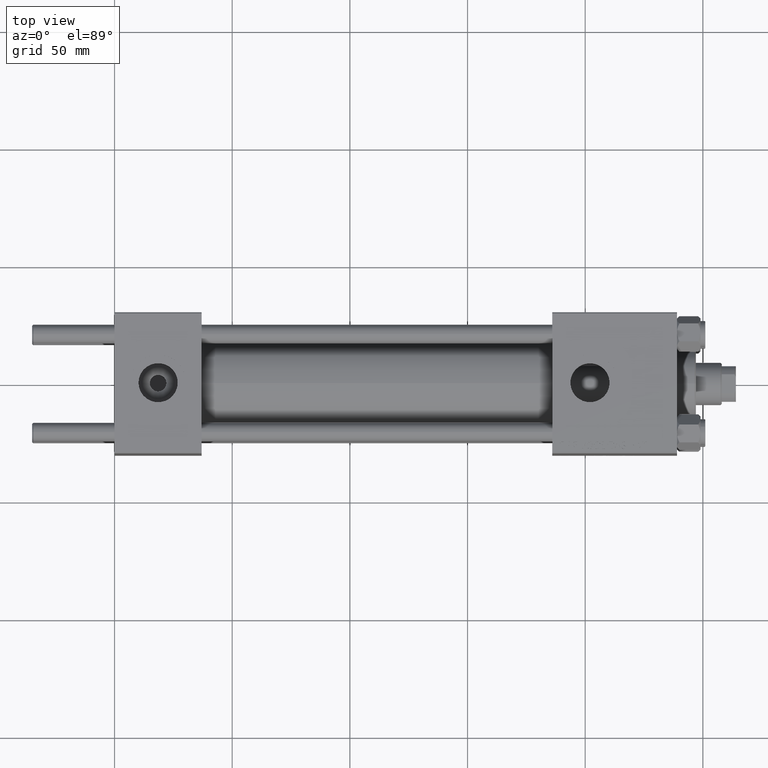
[diagram: clean part render]
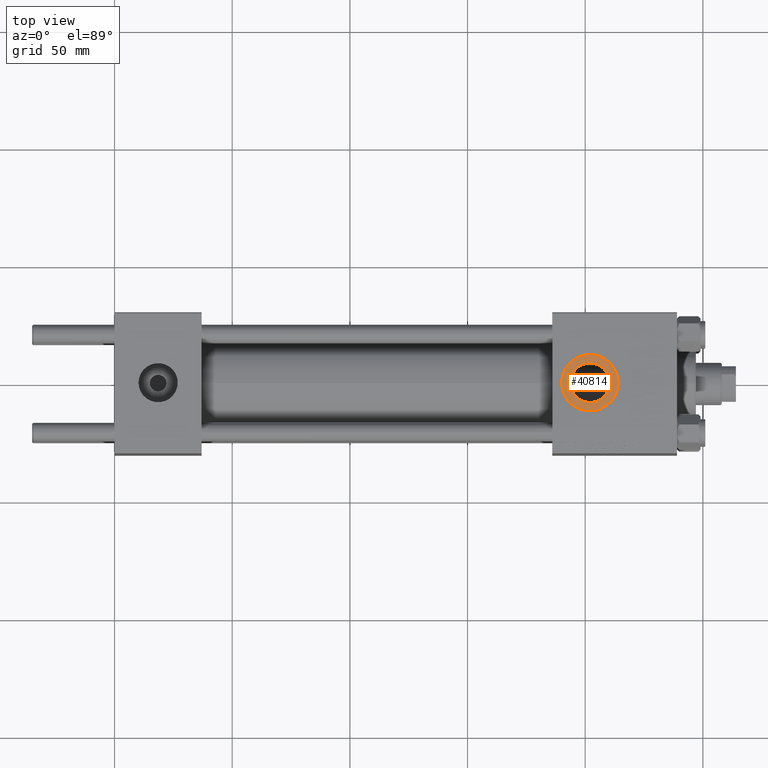
[diagram: same view with one face highlighted and labeled with its STEP entity id]
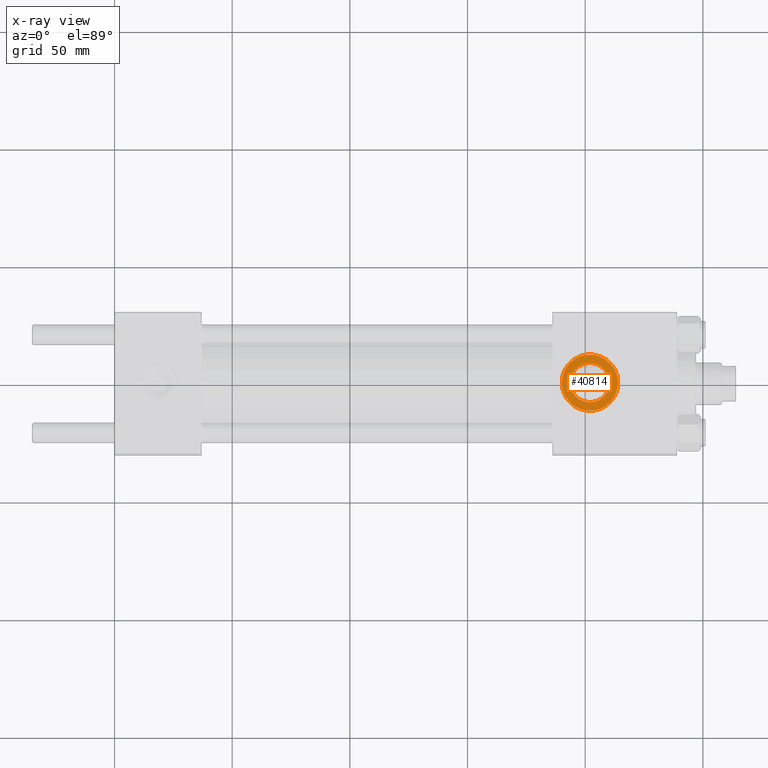
[diagram: x-ray of the same camera — body ghosted, the highlighted face saturated]
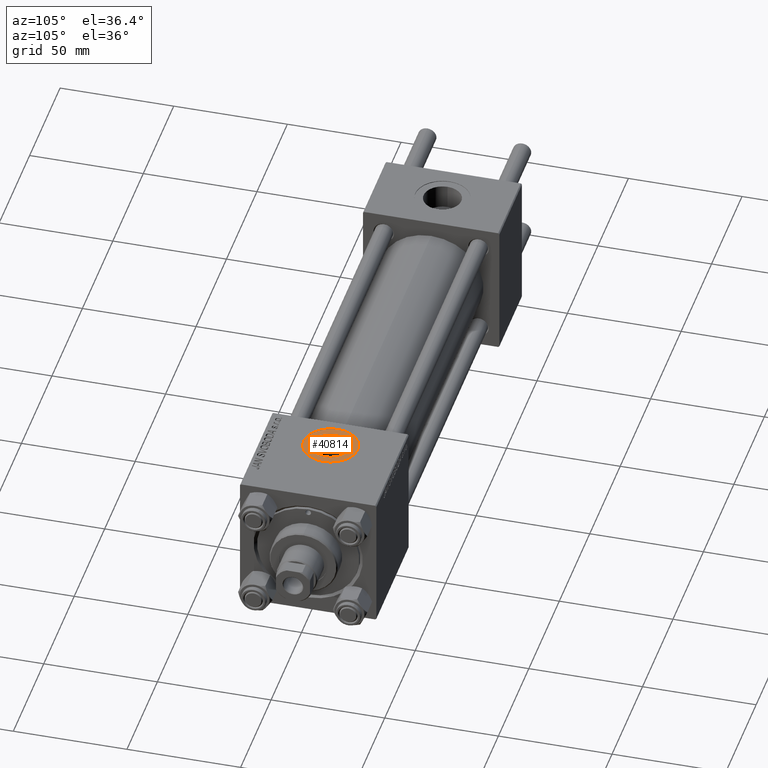
[diagram: same view with one face highlighted and labeled with its STEP entity id]
A machine part, top view. The second image highlights one B-rep face of the part: STEP entity #40814.
The next image is the same camera in x-ray: the body ghosted, the highlighted face saturated — about 0% of this face is hidden behind the body in this view.
A second angle (auxiliary view) of the same face is appended — the face is thin or edge-on in the first view.
In plain terms, the highlighted planar face has unit normal (0, 0, 1).
Its self-contained STEP definition (entity closure, byte-faithful):
#79 = EDGE_CURVE ( 'NONE', #42237, #34121, #28500, .T. ) ;
#1603 = DIRECTION ( 'NONE',  ( 0.000000000000000000, 0.000000000000000000, 1.000000000000000000 ) ) ;
#4511 = DIRECTION ( 'NONE',  ( 1.000000000000000000, 0.000000000000000000, 0.000000000000000000 ) ) ;
#5059 = AXIS2_PLACEMENT_3D ( 'NONE', #39445, #24225, #4511 ) ;
#6160 = AXIS2_PLACEMENT_3D ( 'NONE', #33028, #24645, #8729 ) ;
#7421 = CARTESIAN_POINT ( 'NONE',  ( 202.0000000000000000, -3.469446951953613794E-15, 29.79999999999999716 ) ) ;
#8729 = DIRECTION ( 'NONE',  ( 1.000000000000000000, 0.000000000000000000, 0.000000000000000000 ) ) ;
#8903 = ORIENTED_EDGE ( 'NONE', *, *, #33921, .T. ) ;
#9256 = VERTEX_POINT ( 'NONE', #19617 ) ;
#9717 = VERTEX_POINT ( 'NONE', #25280 ) ;
#10300 = PLANE ( 'NONE',  #28069 ) ;
#13158 = CIRCLE ( 'NONE', #5059, 8.330000000000003624 ) ;
#15512 = CARTESIAN_POINT ( 'NONE',  ( 202.0000000000000000, -3.469446951953613794E-15, 29.79999999999999716 ) ) ;
#16997 = EDGE_CURVE ( 'NONE', #34121, #42237, #13158, .T. ) ;
#19617 = CARTESIAN_POINT ( 'NONE',  ( 190.0000000000000000, -1.999870792976789650E-15, 29.79999999999999716 ) ) ;
#21668 = FACE_OUTER_BOUND ( 'NONE', #32291, .T. ) ;
#22614 = EDGE_LOOP ( 'NONE', ( #40272, #34931 ) ) ;
#24225 = DIRECTION ( 'NONE',  ( -0.000000000000000000, -0.000000000000000000, -1.000000000000000000 ) ) ;
#24645 = DIRECTION ( 'NONE',  ( 0.000000000000000000, 0.000000000000000000, 1.000000000000000000 ) ) ;
#25280 = CARTESIAN_POINT ( 'NONE',  ( 214.0000000000000284, -3.469446951953613794E-15, 29.79999999999999716 ) ) ;
#27133 = DIRECTION ( 'NONE',  ( 1.000000000000000000, 0.000000000000000000, 0.000000000000000000 ) ) ;
#27539 = EDGE_CURVE ( 'NONE', #9256, #9717, #32006, .T. ) ;
#28069 = AXIS2_PLACEMENT_3D ( 'NONE', #15512, #42353, #30225 ) ;
#28500 = CIRCLE ( 'NONE', #47902, 8.330000000000003624 ) ;
#28947 = CIRCLE ( 'NONE', #32183, 12.00000000000001066 ) ;
#30225 = DIRECTION ( 'NONE',  ( 1.000000000000000000, 0.000000000000000000, -0.000000000000000000 ) ) ;
#32006 = CIRCLE ( 'NONE', #6160, 12.00000000000001066 ) ;
#32183 = AXIS2_PLACEMENT_3D ( 'NONE', #48918, #1603, #37294 ) ;
#32291 = EDGE_LOOP ( 'NONE', ( #8903, #41976 ) ) ;
#33028 = CARTESIAN_POINT ( 'NONE',  ( 202.0000000000000000, -3.469446951953613794E-15, 29.79999999999999716 ) ) ;
#33921 = EDGE_CURVE ( 'NONE', #9717, #9256, #28947, .T. ) ;
#34121 = VERTEX_POINT ( 'NONE', #46854 ) ;
#34931 = ORIENTED_EDGE ( 'NONE', *, *, #79, .T. ) ;
#37294 = DIRECTION ( 'NONE',  ( 1.000000000000000000, 0.000000000000000000, 0.000000000000000000 ) ) ;
#37812 = DIRECTION ( 'NONE',  ( -0.000000000000000000, -0.000000000000000000, -1.000000000000000000 ) ) ;
#39445 = CARTESIAN_POINT ( 'NONE',  ( 202.0000000000000000, -3.469446951953613794E-15, 29.79999999999999716 ) ) ;
#40249 = CARTESIAN_POINT ( 'NONE',  ( 210.3300000000000125, -2.449316168263869821E-15, 29.79999999999999716 ) ) ;
#40272 = ORIENTED_EDGE ( 'NONE', *, *, #16997, .T. ) ;
#40814 = ADVANCED_FACE ( 'NONE', ( #44970, #21668 ), #10300, .T. ) ;
#41976 = ORIENTED_EDGE ( 'NONE', *, *, #27539, .T. ) ;
#42237 = VERTEX_POINT ( 'NONE', #40249 ) ;
#42353 = DIRECTION ( 'NONE',  ( 0.000000000000000000, 0.000000000000000000, 1.000000000000000000 ) ) ;
#44970 = FACE_BOUND ( 'NONE', #22614, .T. ) ;
#46854 = CARTESIAN_POINT ( 'NONE',  ( 193.6700000000000159, -3.469446951953613794E-15, 29.79999999999999716 ) ) ;
#47902 = AXIS2_PLACEMENT_3D ( 'NONE', #7421, #37812, #27133 ) ;
#48918 = CARTESIAN_POINT ( 'NONE',  ( 202.0000000000000000, -3.469446951953613794E-15, 29.79999999999999716 ) ) ;